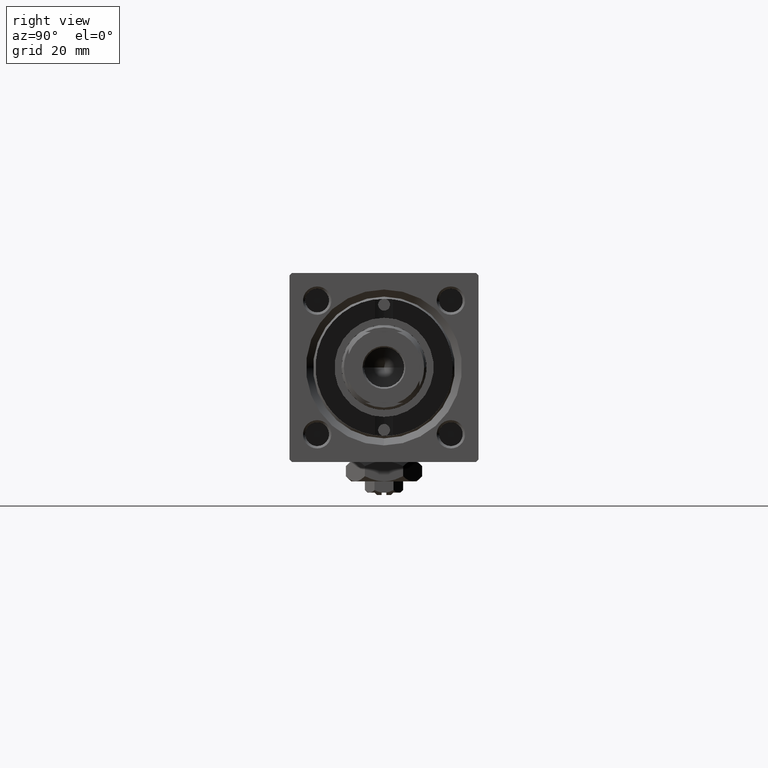
[diagram: clean part render]
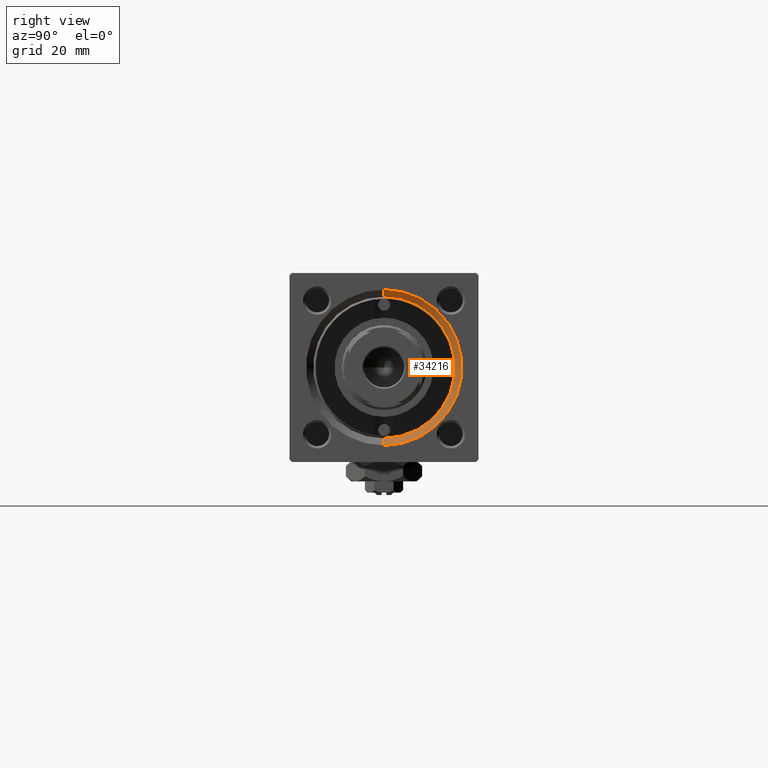
[diagram: same view with one face highlighted and labeled with its STEP entity id]
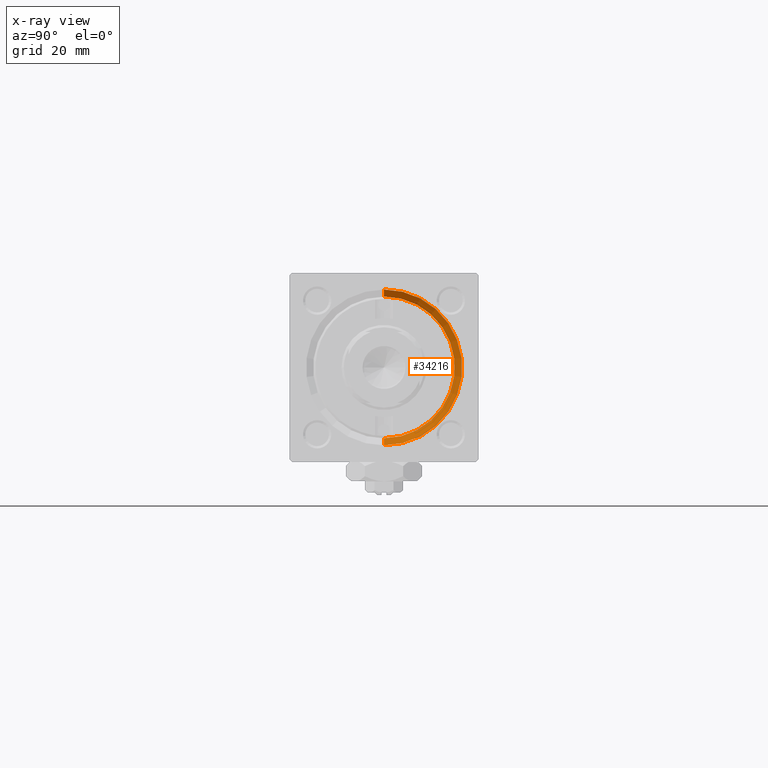
[diagram: x-ray of the same camera — body ghosted, the highlighted face saturated]
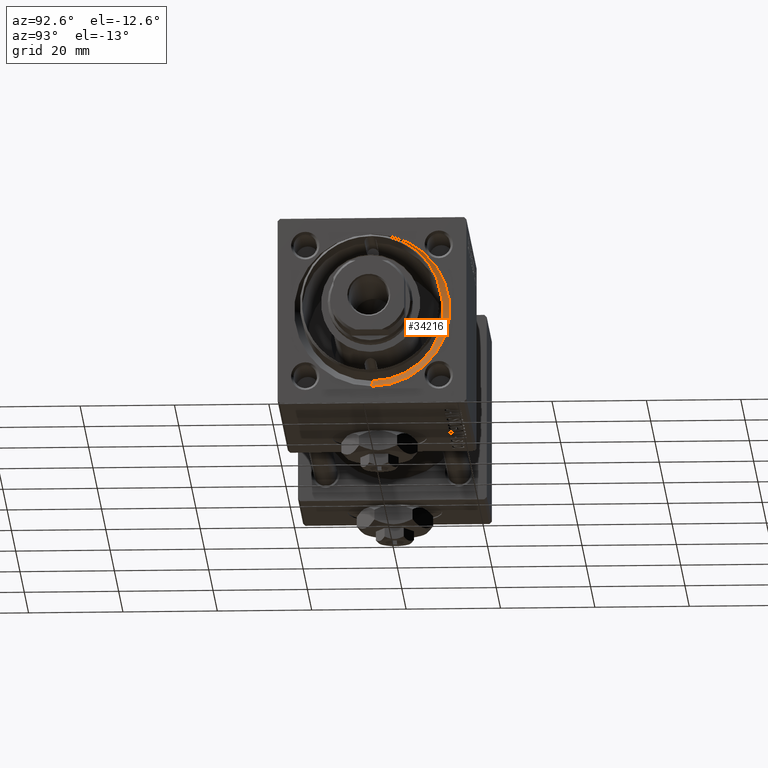
[diagram: same view with one face highlighted and labeled with its STEP entity id]
A machine part, right view. The second image highlights one B-rep face of the part: STEP entity #34216.
The next image is the same camera in x-ray: the body ghosted, the highlighted face saturated — about 0% of this face is hidden behind the body in this view.
A second angle (auxiliary view) of the same face is appended — the face is thin or edge-on in the first view.
In plain terms, the highlighted conical surface has half-angle 45 deg.
Its self-contained STEP definition (entity closure, byte-faithful):
#512 = DIRECTION ( 'NONE',  ( 1.000000000000000000, 0.000000000000000000, 0.000000000000000000 ) ) ;
#1338 = CONICAL_SURFACE ( 'NONE', #3026, 15.00000000000000000, 0.7853981633974482790 ) ;
#2585 = ORIENTED_EDGE ( 'NONE', *, *, #31014, .T. ) ;
#3026 = AXIS2_PLACEMENT_3D ( 'NONE', #28572, #40989, #27584 ) ;
#4001 = CARTESIAN_POINT ( 'NONE',  ( 117.5000000000000000, 1.836970198721029589E-15, 15.00000000000000000 ) ) ;
#4469 = CARTESIAN_POINT ( 'NONE',  ( 117.5000000000000000, 0.000000000000000000, 0.000000000000000000 ) ) ;
#7271 = VERTEX_POINT ( 'NONE', #19992 ) ;
#8557 = ORIENTED_EDGE ( 'NONE', *, *, #45851, .F. ) ;
#10074 = CIRCLE ( 'NONE', #47172, 15.00000000000000000 ) ;
#10997 = CARTESIAN_POINT ( 'NONE',  ( 119.0000000000000142, 0.000000000000000000, 0.000000000000000000 ) ) ;
#12290 = LINE ( 'NONE', #44520, #48469 ) ;
#12987 = FACE_OUTER_BOUND ( 'NONE', #45153, .T. ) ;
#16646 = DIRECTION ( 'NONE',  ( 0.000000000000000000, 0.000000000000000000, 1.000000000000000000 ) ) ;
#16793 = EDGE_CURVE ( 'NONE', #7271, #19487, #17870, .T. ) ;
#17870 = CIRCLE ( 'NONE', #34700, 16.50000000000001421 ) ;
#19487 = VERTEX_POINT ( 'NONE', #22243 ) ;
#19957 = DIRECTION ( 'NONE',  ( 0.7071067811865474617, 0.000000000000000000, -0.7071067811865474617 ) ) ;
#19992 = CARTESIAN_POINT ( 'NONE',  ( 119.0000000000000142, 2.020667218593134678E-15, 16.50000000000001421 ) ) ;
#22243 = CARTESIAN_POINT ( 'NONE',  ( 119.0000000000000142, 0.000000000000000000, -16.50000000000001421 ) ) ;
#27584 = DIRECTION ( 'NONE',  ( 0.000000000000000000, 0.000000000000000000, -1.000000000000000000 ) ) ;
#27619 = DIRECTION ( 'NONE',  ( -1.000000000000000000, -0.000000000000000000, -0.000000000000000000 ) ) ;
#28572 = CARTESIAN_POINT ( 'NONE',  ( 117.5000000000000000, 0.000000000000000000, 0.000000000000000000 ) ) ;
#31014 = EDGE_CURVE ( 'NONE', #49902, #19487, #12290, .T. ) ;
#32667 = ORIENTED_EDGE ( 'NONE', *, *, #43252, .F. ) ;
#34216 = ADVANCED_FACE ( 'NONE', ( #12987 ), #1338, .F. ) ;
#34700 = AXIS2_PLACEMENT_3D ( 'NONE', #10997, #27619, #43490 ) ;
#35746 = CARTESIAN_POINT ( 'NONE',  ( 117.5000000000000000, 0.000000000000000000, -15.00000000000000000 ) ) ;
#36307 = ORIENTED_EDGE ( 'NONE', *, *, #16793, .F. ) ;
#39441 = CARTESIAN_POINT ( 'NONE',  ( 117.5000000000000000, 1.836970198721029589E-15, 15.00000000000000000 ) ) ;
#39702 = DIRECTION ( 'NONE',  ( 0.7071067811865474617, 8.659560562354932858E-17, 0.7071067811865474617 ) ) ;
#40989 = DIRECTION ( 'NONE',  ( 1.000000000000000000, 0.000000000000000000, 0.000000000000000000 ) ) ;
#43252 = EDGE_CURVE ( 'NONE', #48317, #7271, #51327, .T. ) ;
#43490 = DIRECTION ( 'NONE',  ( 0.000000000000000000, 0.000000000000000000, 1.000000000000000000 ) ) ;
#44520 = CARTESIAN_POINT ( 'NONE',  ( 117.5000000000000000, 0.000000000000000000, -15.00000000000000000 ) ) ;
#45153 = EDGE_LOOP ( 'NONE', ( #32667, #8557, #2585, #36307 ) ) ;
#45851 = EDGE_CURVE ( 'NONE', #49902, #48317, #10074, .T. ) ;
#47172 = AXIS2_PLACEMENT_3D ( 'NONE', #4469, #512, #16646 ) ;
#48317 = VERTEX_POINT ( 'NONE', #4001 ) ;
#48469 = VECTOR ( 'NONE', #19957, 1000.000000000000114 ) ;
#48763 = VECTOR ( 'NONE', #39702, 1000.000000000000114 ) ;
#49902 = VERTEX_POINT ( 'NONE', #35746 ) ;
#51327 = LINE ( 'NONE', #39441, #48763 ) ;